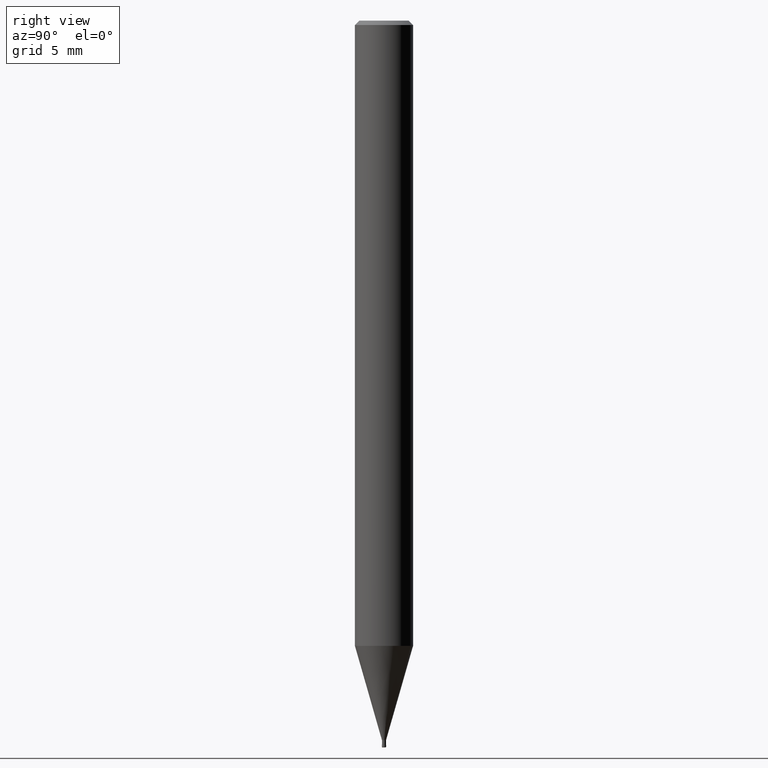
[diagram: clean part render]
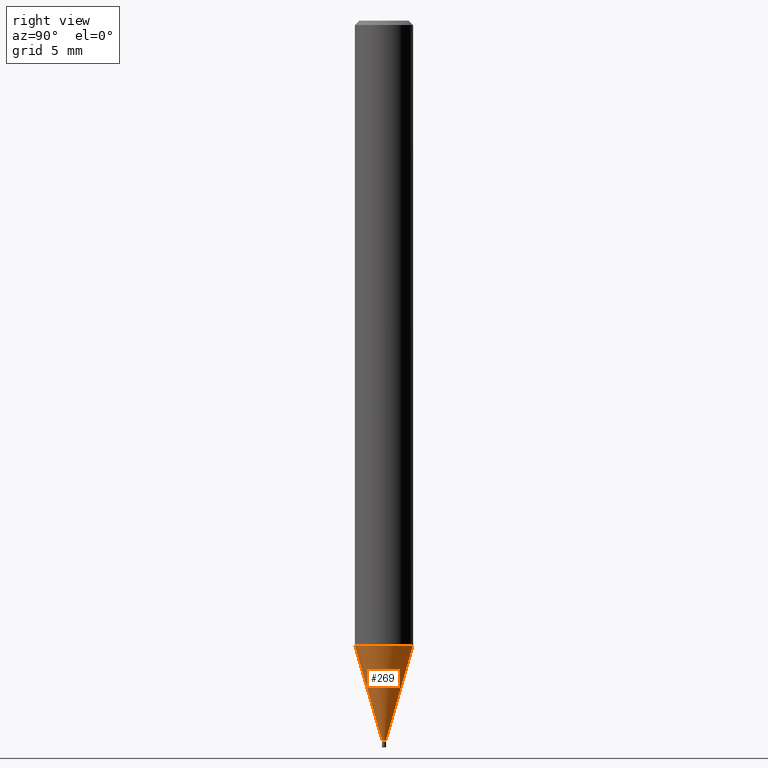
[diagram: same view with one face highlighted and labeled with its STEP entity id]
A machine part, right view. The second image highlights one B-rep face of the part: STEP entity #269.
In plain terms, the highlighted conical surface has half-angle 15.999 deg.
Its self-contained STEP definition (entity closure, byte-faithful):
#157=EDGE_CURVE('',#183,#223,#397,.T.);
#167=EDGE_CURVE('',#223,#355,#408,.T.);
#183=VERTEX_POINT('',#426);
#197=EDGE_CURVE('',#333,#183,#443,.T.);
#223=VERTEX_POINT('',#469);
#247=EDGE_CURVE('',#333,#355,#496,.T.);
#269=ADVANCED_FACE('',(#522),#523,.T.);
#333=VERTEX_POINT('',#596);
#355=VERTEX_POINT('',#620);
#397=CIRCLE('',#658,0.13995);
#408=LINE('',#673,#674);
#426=CARTESIAN_POINT('',(0.0,0.13995,-49.49));
#443=LINE('',#713,#714);
#469=CARTESIAN_POINT('',(1.71383659217442E-017,-0.13995,-49.49));
#496=CIRCLE('',#784,1.99995);
#522=FACE_OUTER_BOUND('',#815,.T.);
#523=CONICAL_SURFACE('',#816,1.06995,0.27923596926092);
#596=CARTESIAN_POINT('',(0.0,1.99995,-43.003));
#620=CARTESIAN_POINT('',(2.44915147732706E-016,-1.99995,-43.003));
#658=AXIS2_PLACEMENT_3D('',#984,#985,#986);
#673=CARTESIAN_POINT('',(1.31026756827225E-016,-1.06995,-46.2465));
#674=VECTOR('',#999,1.0);
#713=CARTESIAN_POINT('',(-1.31026756827225E-016,1.06995,-46.2465));
#714=VECTOR('',#1036,1.0);
#784=AXIS2_PLACEMENT_3D('',#1094,#1095,#1096);
#815=EDGE_LOOP('',(#1136,#1137,#1138,#1139));
#816=AXIS2_PLACEMENT_3D('',#1140,#1141,#1142);
#984=CARTESIAN_POINT('',(0.0,0.0,-49.49));
#985=DIRECTION('',(0.0,0.0,-1.0));
#986=DIRECTION('',(0.0,1.0,0.0));
#999=DIRECTION('',(3.37527585527933E-017,-0.275621292078393,0.961266301995986));
#1036=DIRECTION('',(3.37527585527933E-017,-0.275621292078393,-0.961266301995986));
#1094=CARTESIAN_POINT('',(0.0,0.0,-43.003));
#1095=DIRECTION('',(0.0,0.0,-1.0));
#1096=DIRECTION('',(0.0,1.0,0.0));
#1136=ORIENTED_EDGE('',*,*,#197,.F.);
#1137=ORIENTED_EDGE('',*,*,#247,.T.);
#1138=ORIENTED_EDGE('',*,*,#167,.F.);
#1139=ORIENTED_EDGE('',*,*,#157,.F.);
#1140=CARTESIAN_POINT('',(0.0,0.0,-46.2465));
#1141=DIRECTION('',(-0.0,-0.0,1.0));
#1142=DIRECTION('',(0.0,1.0,0.0));